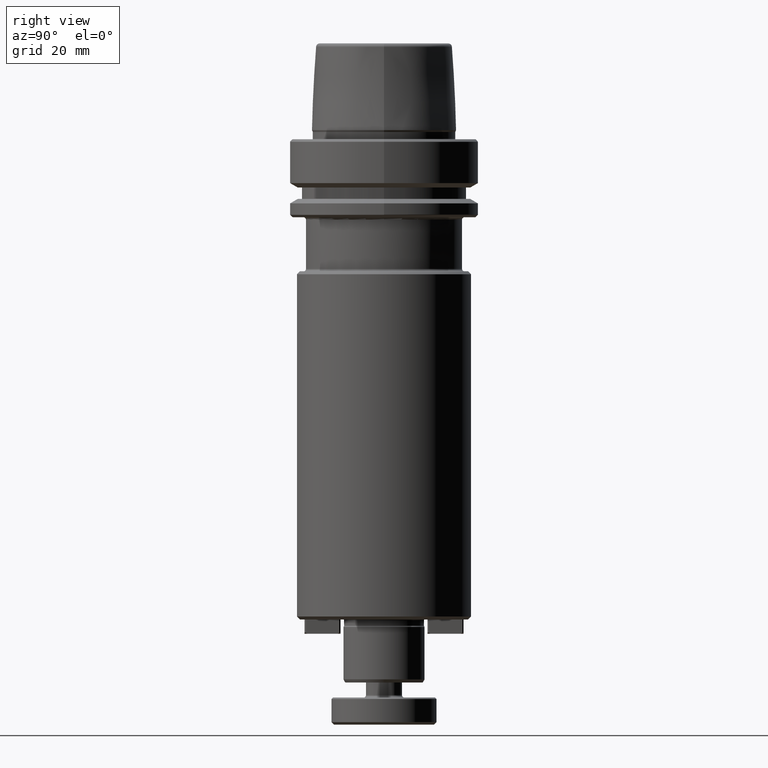
[diagram: clean part render]
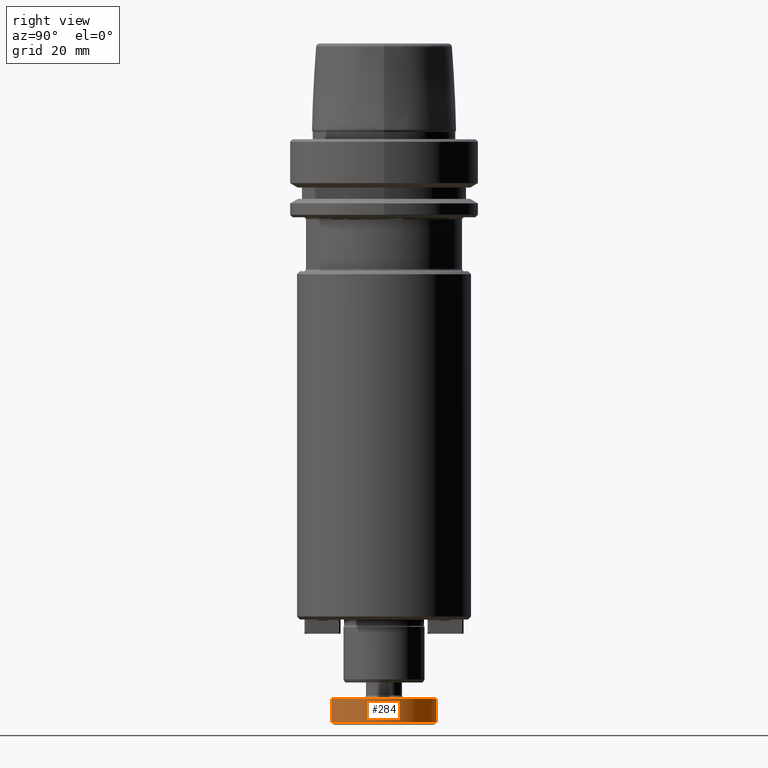
[diagram: same view with one face highlighted and labeled with its STEP entity id]
A machine part, right view. The second image highlights one B-rep face of the part: STEP entity #284.
In plain terms, the highlighted cylindrical surface (partial cylindrical patch) has radius 17.5 mm, axis along (-0, -0, 1).
Its self-contained STEP definition (entity closure, byte-faithful):
#43 = EDGE_CURVE ( 'NONE', #2043, #424, #150, .T. ) ;
#129 = CARTESIAN_POINT ( 'NONE',  ( 2.143131898507868600E-015, 17.50000000000000400, -194.2000000000000500 ) ) ;
#150 = CIRCLE ( 'NONE', #2141, 17.50000000000000400 ) ;
#284 = ADVANCED_FACE ( 'NONE', ( #1375 ), #2533, .T. ) ;
#352 = VERTEX_POINT ( 'NONE', #569 ) ;
#424 = VERTEX_POINT ( 'NONE', #129 ) ;
#429 = ORIENTED_EDGE ( 'NONE', *, *, #43, .T. ) ;
#452 = VERTEX_POINT ( 'NONE', #1270 ) ;
#537 = DIRECTION ( 'NONE',  ( 0.0000000000000000000, -1.000000000000000000, 0.0000000000000000000 ) ) ;
#569 = CARTESIAN_POINT ( 'NONE',  ( 2.143131898507868200E-015, 17.50000000000000000, -186.5000000000000000 ) ) ;
#706 = DIRECTION ( 'NONE',  ( 0.0000000000000000000, 7.764989291068193600E-018, -1.000000000000000000 ) ) ;
#743 = ORIENTED_EDGE ( 'NONE', *, *, #2437, .T. ) ;
#762 = DIRECTION ( 'NONE',  ( -0.0000000000000000000, -7.764989291067973300E-018, 1.000000000000000000 ) ) ;
#796 = LINE ( 'NONE', #2041, #1933 ) ;
#867 = CIRCLE ( 'NONE', #2009, 17.50000000000000000 ) ;
#1146 = DIRECTION ( 'NONE',  ( -0.0000000000000000000, -7.764989291067973300E-018, 1.000000000000000000 ) ) ;
#1246 = ORIENTED_EDGE ( 'NONE', *, *, #1799, .F. ) ;
#1270 = CARTESIAN_POINT ( 'NONE',  ( 0.0000000000000000000, -17.50000000000000000, -186.5000000000000000 ) ) ;
#1342 = EDGE_CURVE ( 'NONE', #424, #352, #796, .T. ) ;
#1375 = FACE_OUTER_BOUND ( 'NONE', #2404, .T. ) ;
#1559 = CARTESIAN_POINT ( 'NONE',  ( 0.0000000000000000000, -17.50000000000000400, -14.76692465335438500 ) ) ;
#1799 = EDGE_CURVE ( 'NONE', #2043, #452, #1884, .T. ) ;
#1884 = LINE ( 'NONE', #1559, #2439 ) ;
#1933 = VECTOR ( 'NONE', #2756, 1000.000000000000000 ) ;
#2005 = CARTESIAN_POINT ( 'NONE',  ( 0.0000000000000000000, -17.50000000000000400, -194.2000000000000500 ) ) ;
#2009 = AXIS2_PLACEMENT_3D ( 'NONE', #2070, #706, #2318 ) ;
#2041 = CARTESIAN_POINT ( 'NONE',  ( 2.143131898507868200E-015, 17.49999999999999600, -14.76692465335438500 ) ) ;
#2043 = VERTEX_POINT ( 'NONE', #2005 ) ;
#2070 = CARTESIAN_POINT ( 'NONE',  ( 0.0000000000000000000, -1.248090608787125000E-015, -186.5000000000000000 ) ) ;
#2136 = CARTESIAN_POINT ( 'NONE',  ( 0.0000000000000000000, -1.188300191245901400E-015, -194.2000000000000500 ) ) ;
#2141 = AXIS2_PLACEMENT_3D ( 'NONE', #2136, #762, #2370 ) ;
#2274 = DIRECTION ( 'NONE',  ( -0.0000000000000000000, -7.764989291067973300E-018, 1.000000000000000000 ) ) ;
#2318 = DIRECTION ( 'NONE',  ( 0.0000000000000000000, 1.000000000000000000, 0.0000000000000000000 ) ) ;
#2370 = DIRECTION ( 'NONE',  ( 0.0000000000000000000, -1.000000000000000000, 0.0000000000000000000 ) ) ;
#2404 = EDGE_LOOP ( 'NONE', ( #429, #2615, #743, #1246 ) ) ;
#2437 = EDGE_CURVE ( 'NONE', #352, #452, #867, .T. ) ;
#2439 = VECTOR ( 'NONE', #2274, 1000.000000000000000 ) ;
#2533 = CYLINDRICAL_SURFACE ( 'NONE', #2608, 17.50000000000000000 ) ;
#2535 = CARTESIAN_POINT ( 'NONE',  ( 0.0000000000000000000, -2.581596099775997700E-015, -14.76692465335438500 ) ) ;
#2608 = AXIS2_PLACEMENT_3D ( 'NONE', #2535, #1146, #537 ) ;
#2615 = ORIENTED_EDGE ( 'NONE', *, *, #1342, .T. ) ;
#2756 = DIRECTION ( 'NONE',  ( -0.0000000000000000000, -7.764989291067973300E-018, 1.000000000000000000 ) ) ;